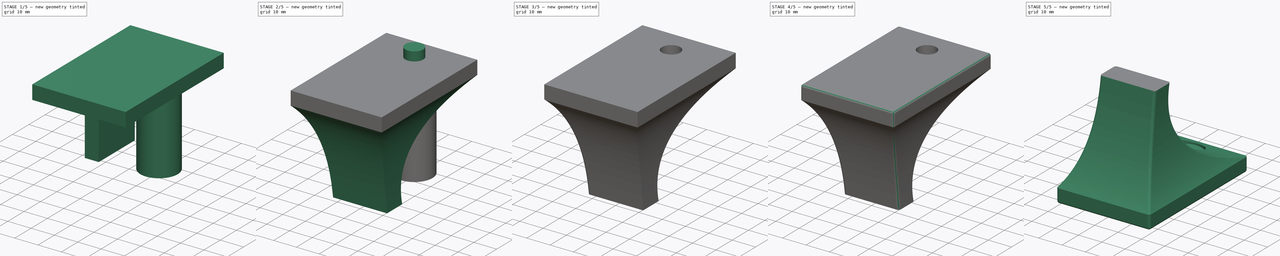
[diagram: build sequence overview — one tinted view per stage of 5, left to right]
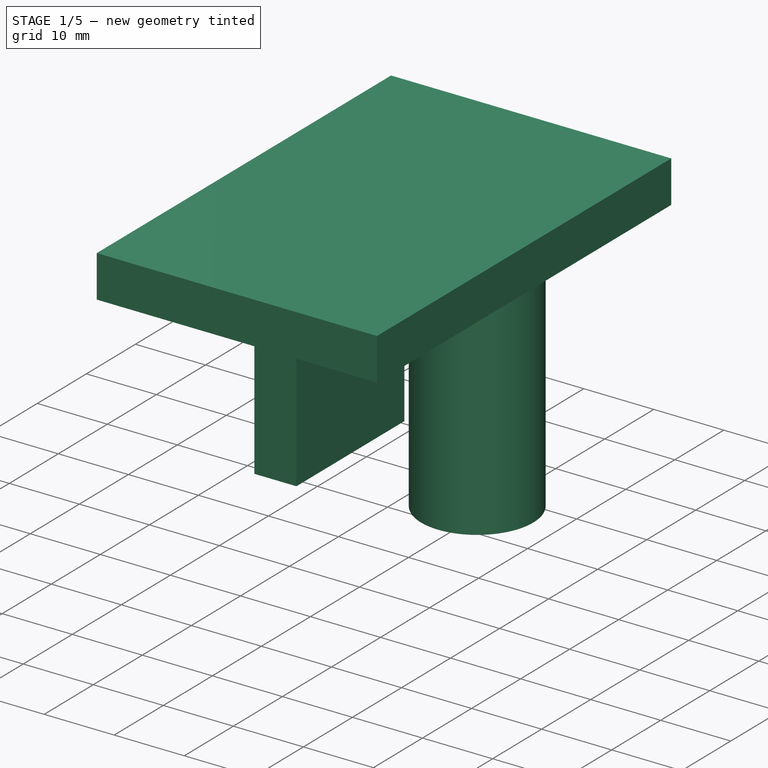
[diagram: stage 1 of 5 — iso view after this stage's code; geometry added in this stage tinted green]
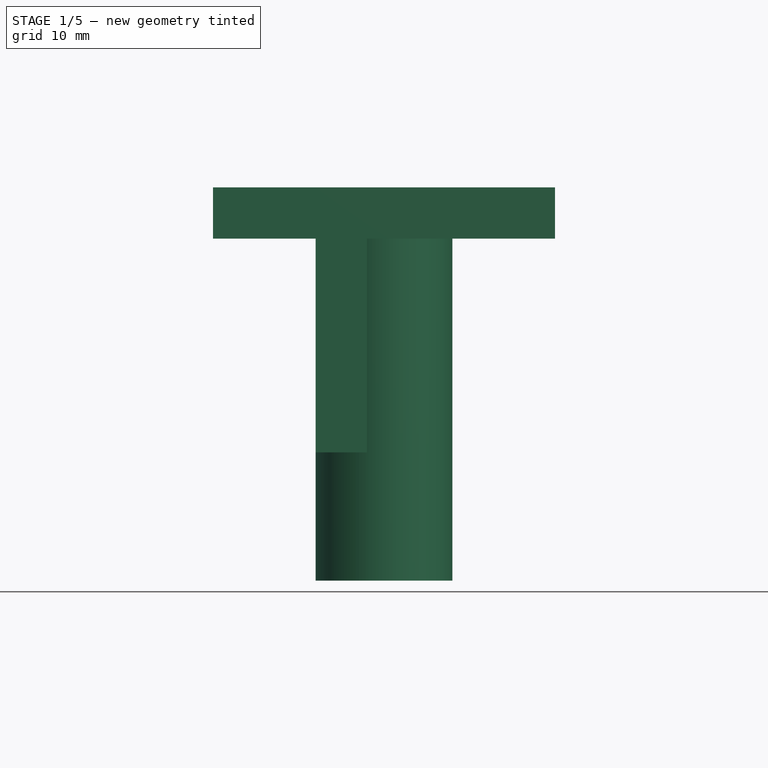
[diagram: stage 1 of 5 — front view after this stage's code; geometry added in this stage tinted green]
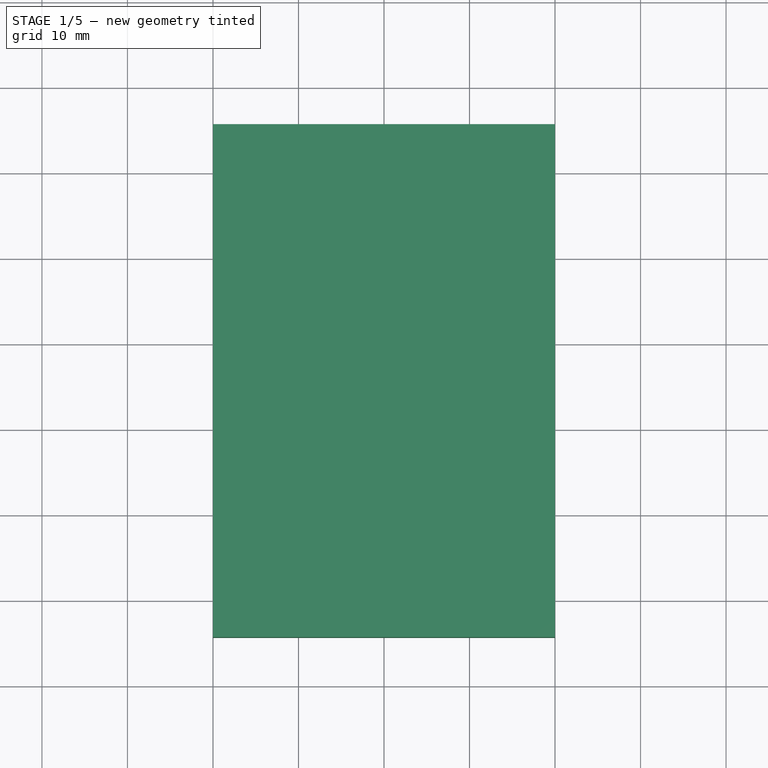
[diagram: stage 1 of 5 — top view after this stage's code; geometry added in this stage tinted green]
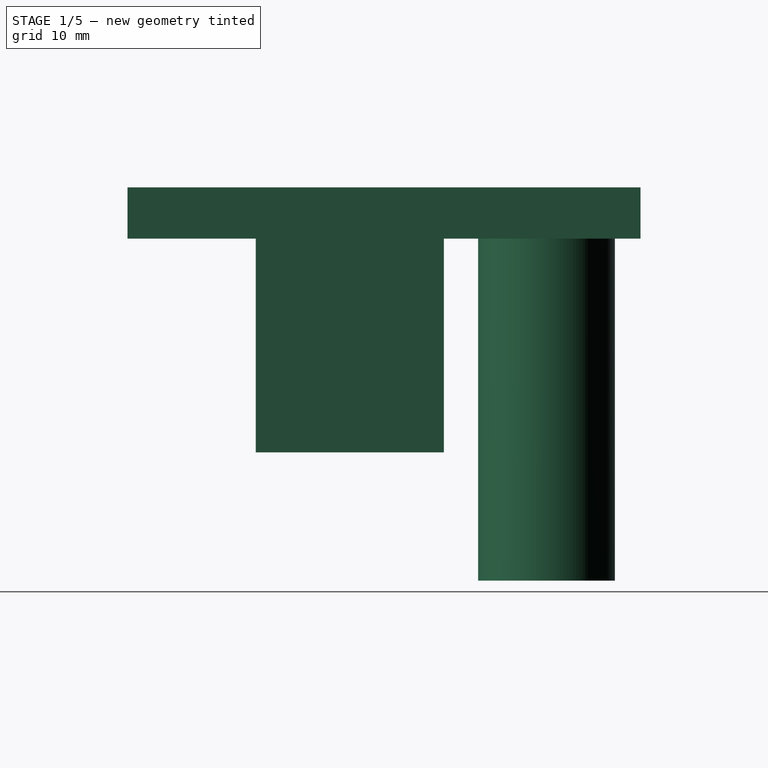
[diagram: stage 1 of 5 — right view after this stage's code; geometry added in this stage tinted green]
FCSTD DOCUMENT  (FreeCAD 0.15R4671 (Git))
Label: 车载
License: All rights reserved
LicenseURL: http://en.wikipedia.org/wiki/All_rights_reserved
objects: Part::Cut×4, Part::Fillet×4, Sketcher::SketchObject×3, Part::Cylinder×2, Part::Box×2, Part::Loft×1, PartDesign::Pad×1, Part::Fuse×1
note: 19 computed .brp shape members not serialized (recipe doc carries the construction recipe); baked Part::Feature solids carry a one-line shape summary decoded from their .brp

FEATURE [PartDesign::Pad] Pad
  Length = 6
  Length2 = 100
  Placement = pos=(0,0,40) rot=(0,0,1;0rad)
  Sketch = -> Sketch002
  Type = 0
FEATURE [Part::Cylinder] Cylinder001
  Angle = 360
  Height = 40
  Placement = pos=(0,34,0) rot=(0,0,1;0rad)
  Radius = 8
FEATURE [Part::Box] Box  label="Cube"
  Height = 25
  Length = 6
  Placement = pos=(-8,0,15) rot=(0,0,1;0rad)
  Width = 22
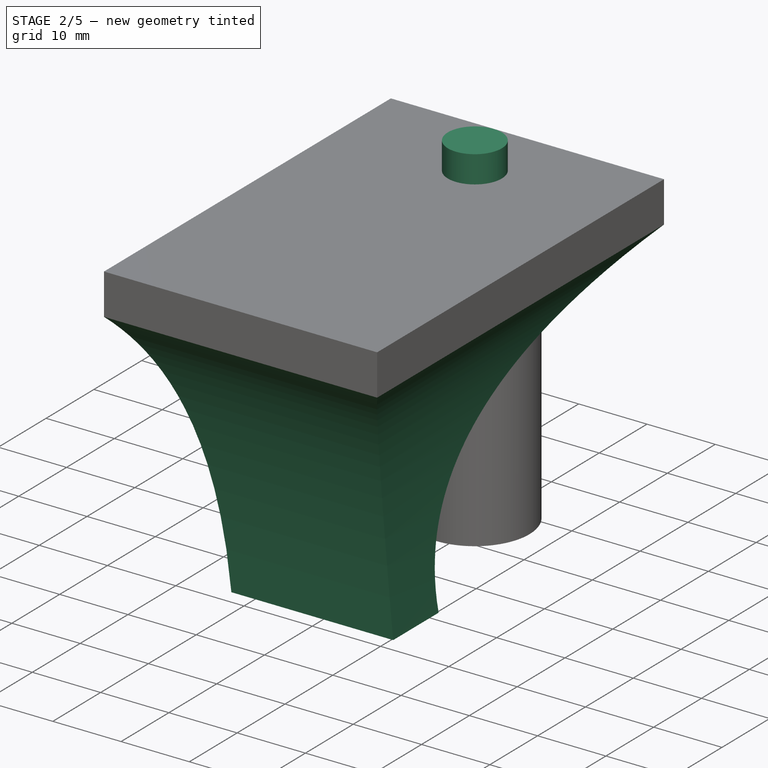
[diagram: stage 2 of 5 — iso view after this stage's code; geometry added in this stage tinted green]
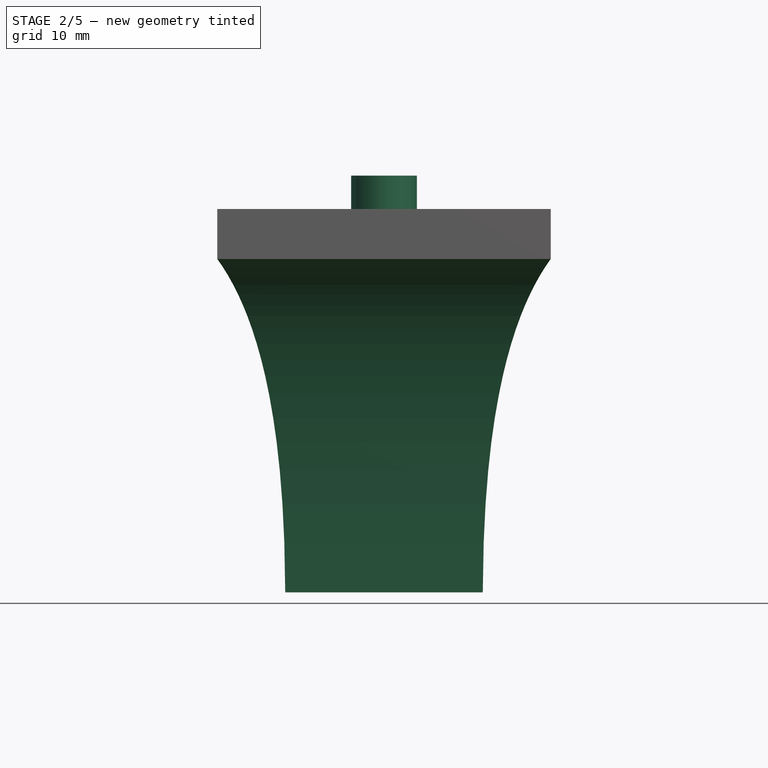
[diagram: stage 2 of 5 — front view after this stage's code; geometry added in this stage tinted green]
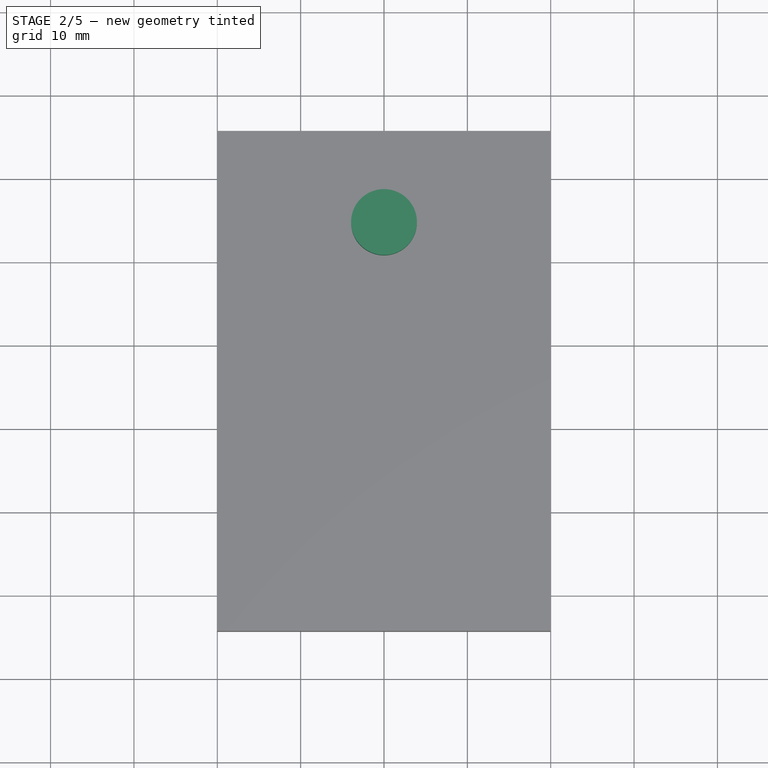
[diagram: stage 2 of 5 — top view after this stage's code; geometry added in this stage tinted green]
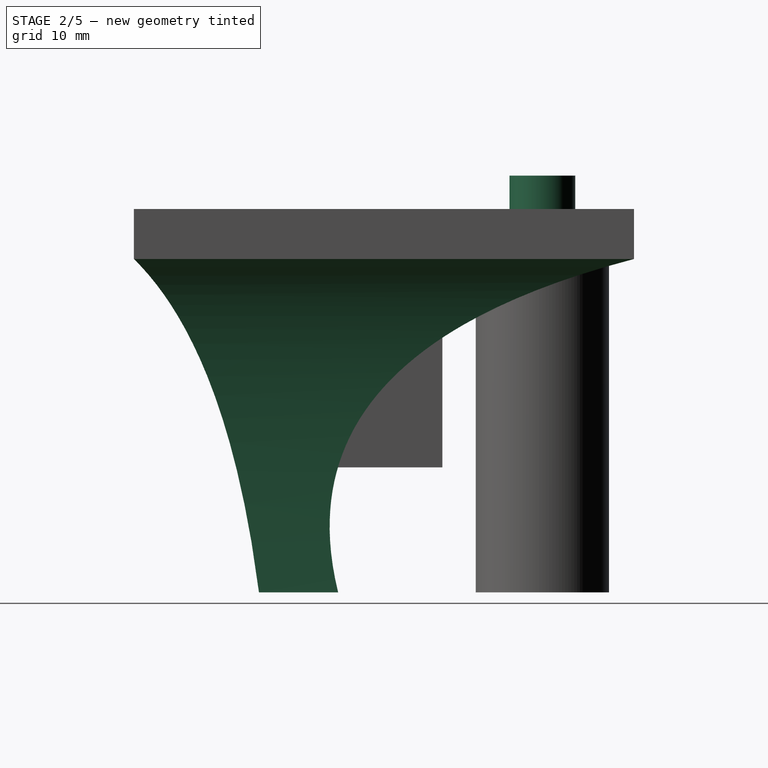
[diagram: stage 2 of 5 — right view after this stage's code; geometry added in this stage tinted green]
FEATURE [Sketcher::SketchObject] Sketch
  sketch-geometry (4):
    g0: LineSegment StartX=-11.85 StartY=9.5 StartZ=0 EndX=11.85 EndY=9.5 EndZ=0
    g1: LineSegment StartX=11.85 StartY=9.5 StartZ=0 EndX=11.85 EndY=0 EndZ=0
    g2: LineSegment StartX=11.85 StartY=0 StartZ=0 EndX=-11.85 EndY=0 EndZ=0
    g3: LineSegment StartX=-11.85 StartY=0 StartZ=0 EndX=-11.85 EndY=9.5 EndZ=0
  constraints (12):
    c: Coincident(g0,g1)
    c: Coincident(g1,g2)
    c: Coincident(g2,g3)
    c: Coincident(g3,g0)
    c: Horizontal(g0)
    c: Horizontal(g2)
    c: Vertical(g1)
    c: Vertical(g3)
    c: Symmetric(g0,g0,g-2)
    c: DistanceX(g2) = -23.7
    c: DistanceY(g1) = -9.5
    c: PointOnObject(g1,g-1)
FEATURE [Sketcher::SketchObject] Sketch001
  Placement = pos=(0,0,15.1) rot=(0,0,1;0rad)
  sketch-geometry (4):
    g0: LineSegment StartX=-12.55 StartY=9.5 StartZ=0 EndX=12.55 EndY=9.5 EndZ=0
    g1: LineSegment StartX=12.55 StartY=9.5 StartZ=0 EndX=12.55 EndY=-2.76 EndZ=0
    g2: LineSegment StartX=12.55 StartY=-2.76 StartZ=0 EndX=-12.55 EndY=-2.76 EndZ=0
    g3: LineSegment StartX=-12.55 StartY=-2.76 StartZ=0 EndX=-12.55 EndY=9.5 EndZ=0
  constraints (12):
    c: Coincident(g0,g1)
    c: Coincident(g1,g2)
    c: Coincident(g2,g3)
    c: Coincident(g3,g0)
    c: Horizontal(g0)
    c: Horizontal(g2)
    c: Vertical(g1)
    c: Vertical(g3)
    c: Symmetric(g0,g0,g-2)
    c: DistanceX(g0) = 25.1
    c: DistanceY(g-1,g0) = 9.5
    c: DistanceY(g3) = 12.26
FEATURE [Sketcher::SketchObject] Sketch002
  Placement = pos=(0,0,40) rot=(0,0,1;0rad)
  sketch-geometry (4):
    g0: LineSegment StartX=-20 StartY=45 StartZ=0 EndX=20 EndY=45 EndZ=0
    g1: LineSegment StartX=20 StartY=45 StartZ=0 EndX=20 EndY=-15 EndZ=0
    g2: LineSegment StartX=20 StartY=-15 StartZ=0 EndX=-20 EndY=-15 EndZ=0
    g3: LineSegment StartX=-20 StartY=-15 StartZ=0 EndX=-20 EndY=45 EndZ=0
  constraints (12):
    c: Coincident(g0,g1)
    c: Coincident(g1,g2)
    c: Coincident(g2,g3)
    c: Coincident(g3,g0)
    c: Horizontal(g0)
    c: Horizontal(g2)
    c: Vertical(g1)
    c: Vertical(g3)
    c: Symmetric(g0,g0,g-2)
    c: DistanceX(g0) = 40
    c: DistanceY(g-1,g0) = 45
    c: DistanceY(g3) = 60
FEATURE [Part::Loft] Loft
  Closed = false
  Ruled = false
  Sections = -> [Sketch,Sketch001,Sketch002]
  Solid = true
FEATURE [Part::Cylinder] Cylinder
  Angle = 360
  Height = 50
  Placement = pos=(0,34,0) rot=(0,0,1;0rad)
  Radius = 3.95
FEATURE [Part::Fuse] Fusion
  Base = -> Loft
  Tool = -> Pad
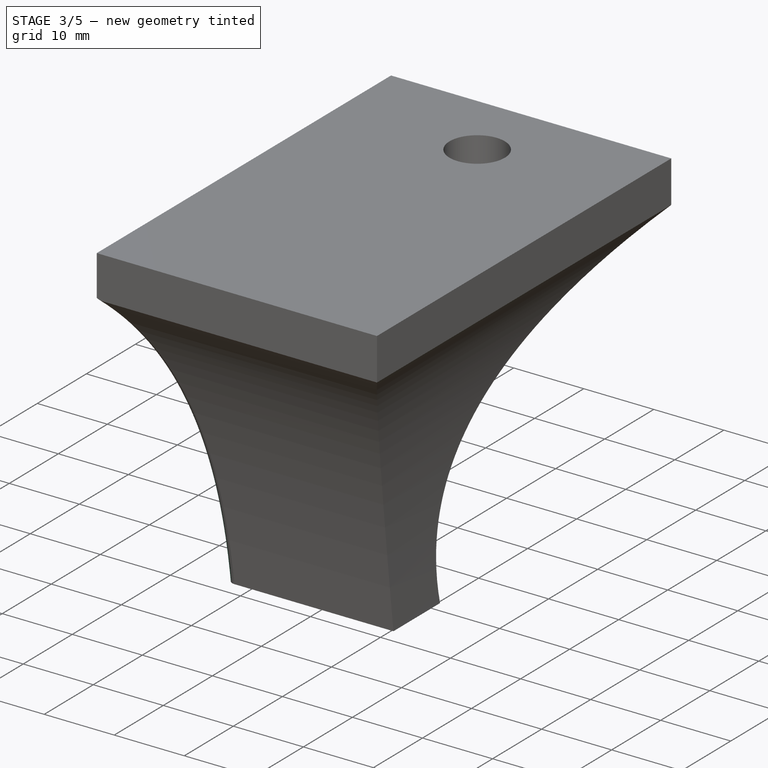
[diagram: stage 3 of 5 — iso view after this stage's code; geometry added in this stage tinted green]
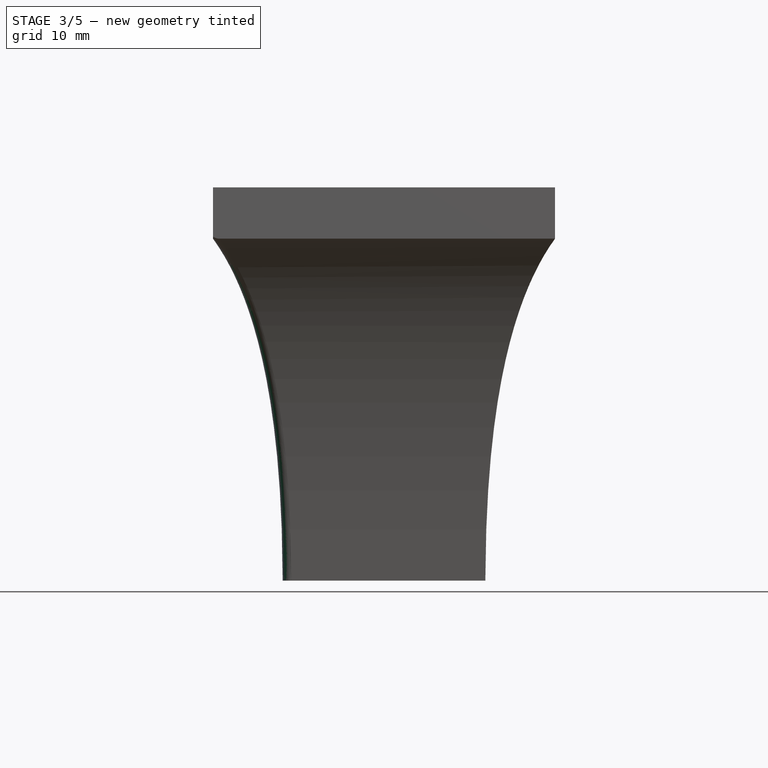
[diagram: stage 3 of 5 — front view after this stage's code; geometry added in this stage tinted green]
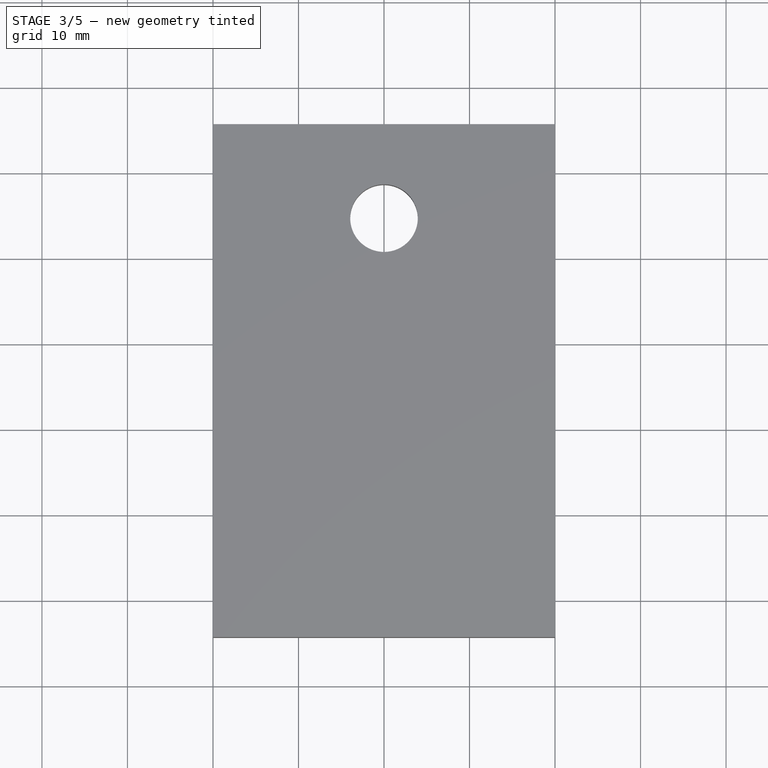
[diagram: stage 3 of 5 — top view after this stage's code; geometry added in this stage tinted green]
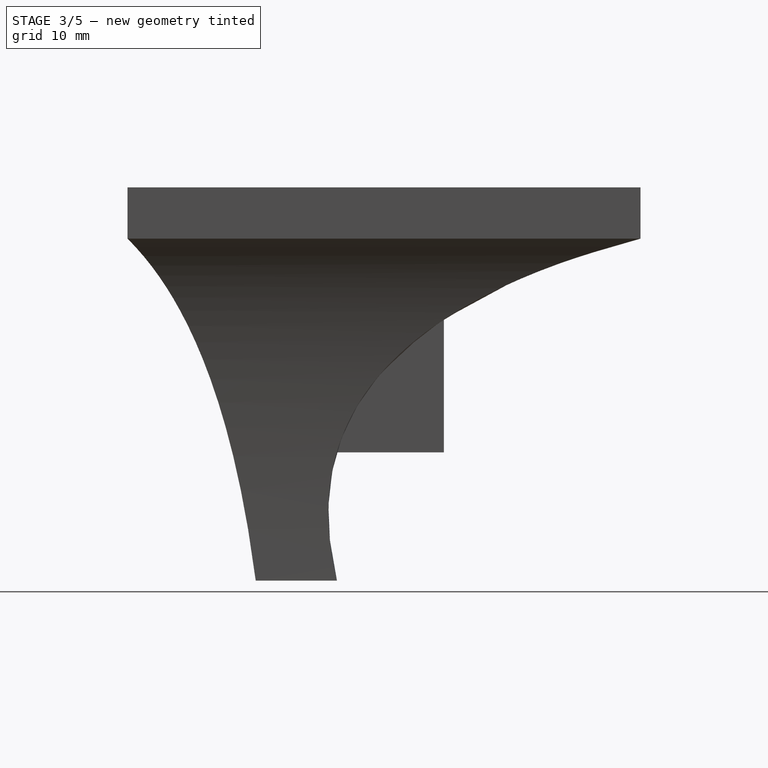
[diagram: stage 3 of 5 — right view after this stage's code; geometry added in this stage tinted green]
FEATURE [Part::Cut] Cut
  Base = -> Fusion
  Tool = -> Cylinder
FEATURE [Part::Cut] Cut001
  Base = -> Cut
  Tool = -> Cylinder001
FEATURE [Part::Fillet] Fillet
  Base = -> Cut001
  Edges = 1 edges r=1: [Edge12]
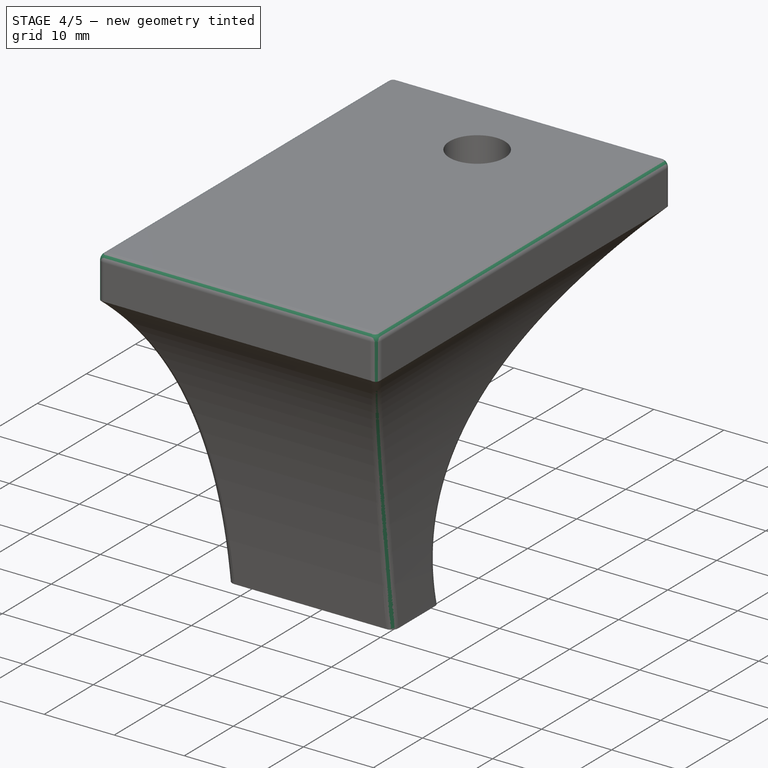
[diagram: stage 4 of 5 — iso view after this stage's code; geometry added in this stage tinted green]
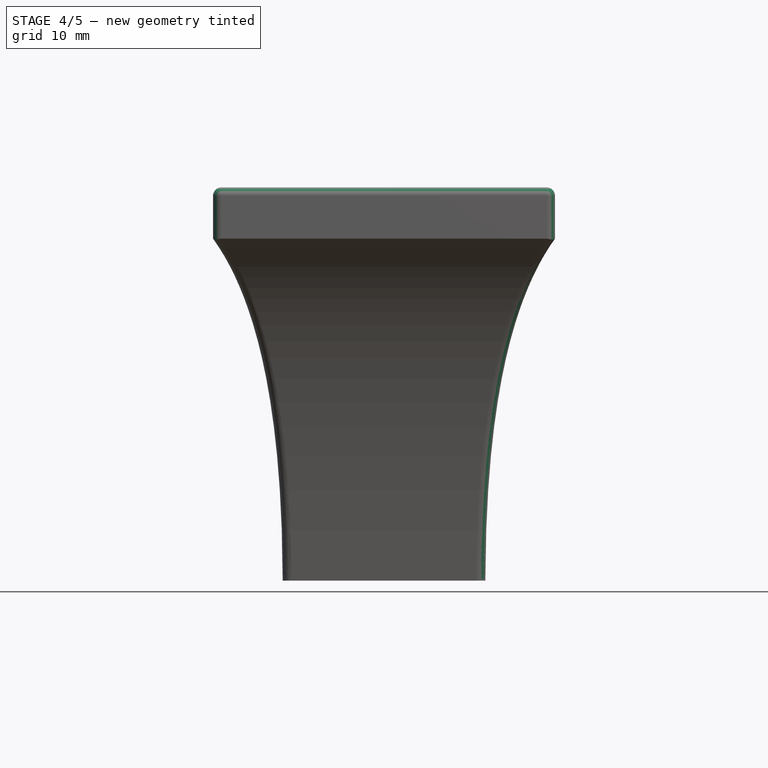
[diagram: stage 4 of 5 — front view after this stage's code; geometry added in this stage tinted green]
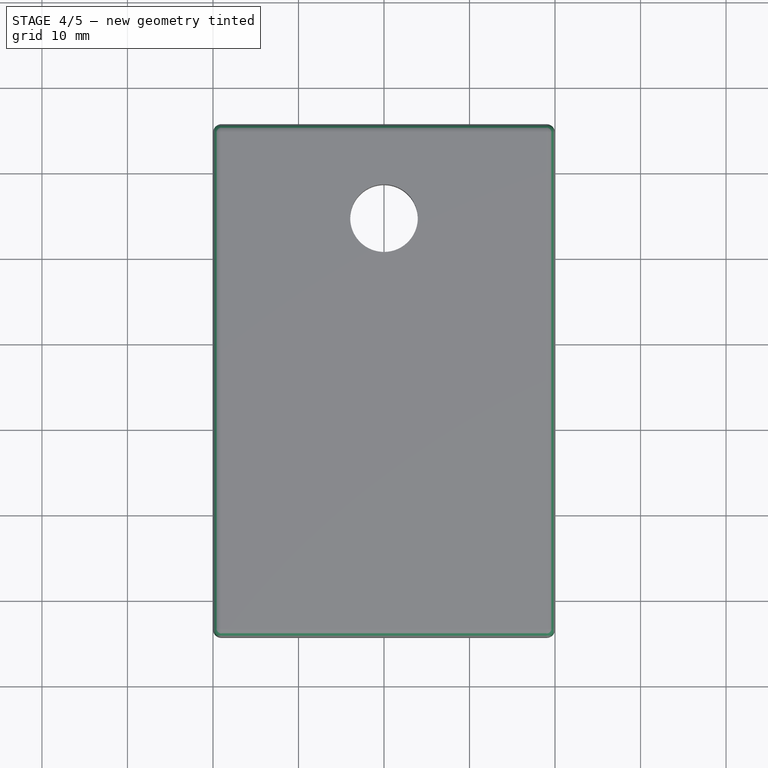
[diagram: stage 4 of 5 — top view after this stage's code; geometry added in this stage tinted green]
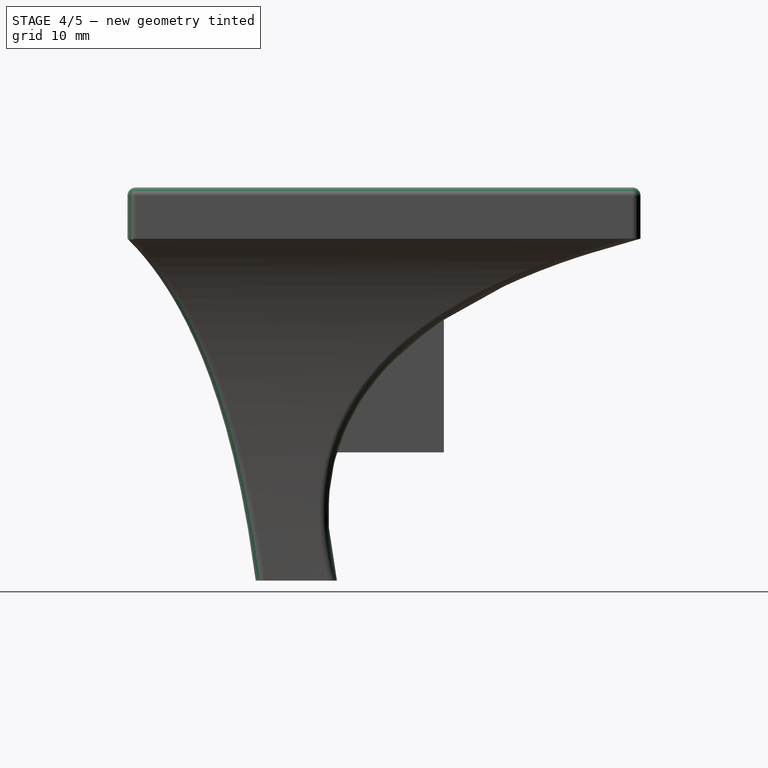
[diagram: stage 4 of 5 — right view after this stage's code; geometry added in this stage tinted green]
FEATURE [Part::Fillet] Fillet001
  Base = -> Fillet
  Edges = 1 edges r=1: [Edge7]
FEATURE [Part::Fillet] Fillet002
  Base = -> Fillet001
  Edges = 2 edges r=1: [Edge16,Edge18]
FEATURE [Part::Fillet] Fillet003
  Base = -> Fillet002
  Edges = 8 edges r=1: [Edge31,Edge32,Edge33,Edge34,Edge35,Edge36,Edge37,Edge40]
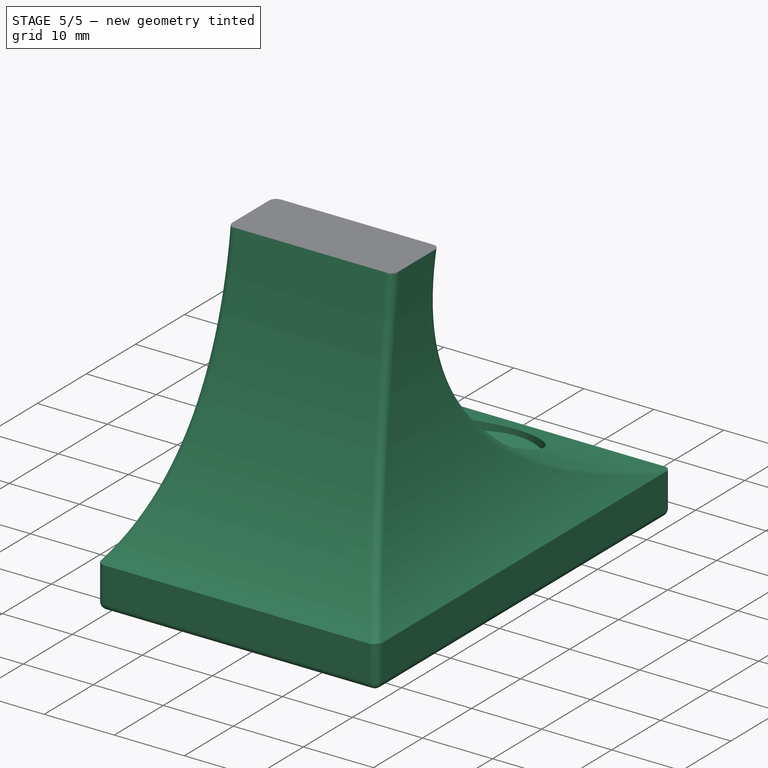
[diagram: stage 5 of 5 — iso view after this stage's code; geometry added in this stage tinted green]
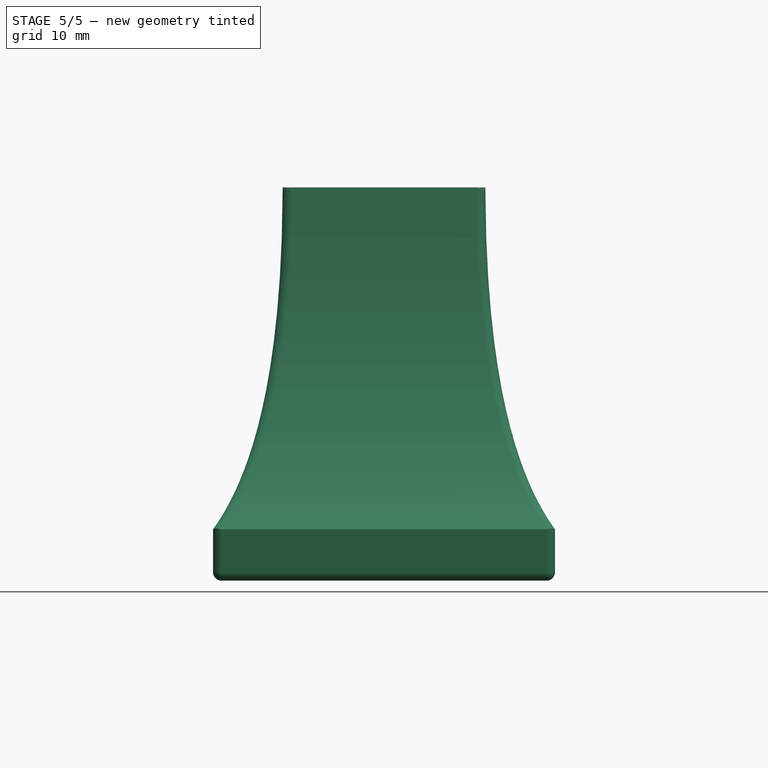
[diagram: stage 5 of 5 — front view after this stage's code; geometry added in this stage tinted green]
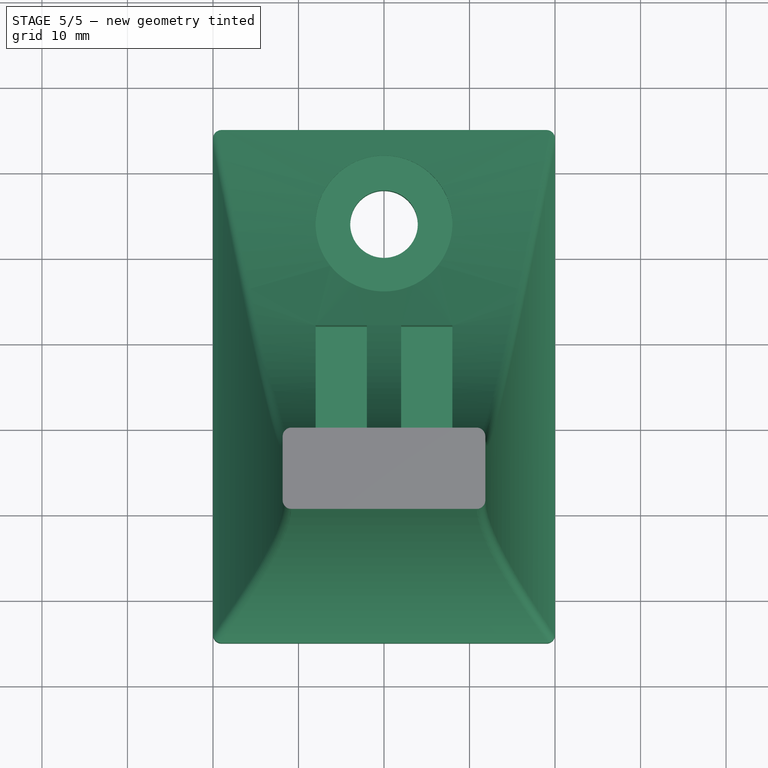
[diagram: stage 5 of 5 — top view after this stage's code; geometry added in this stage tinted green]
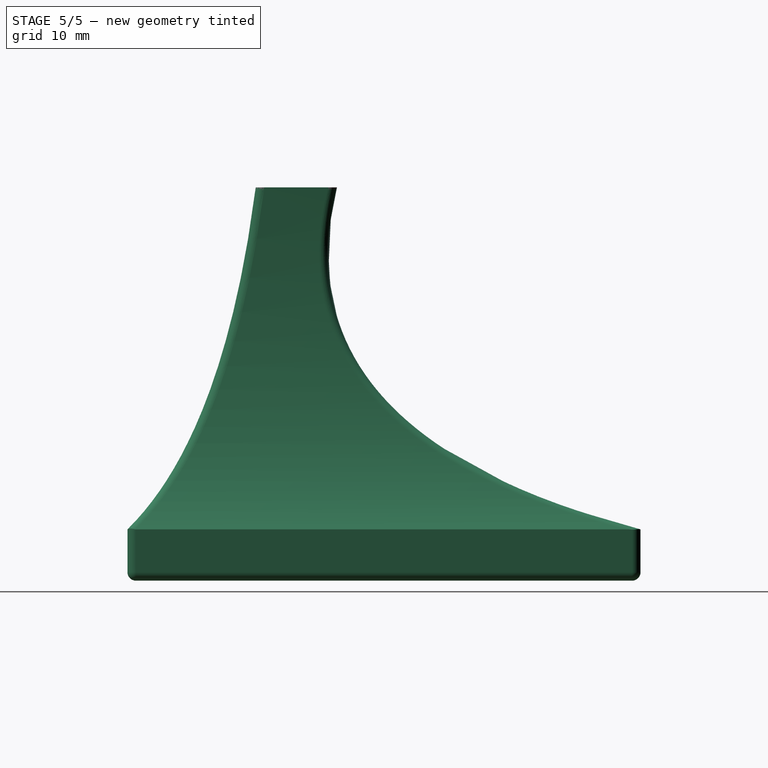
[diagram: stage 5 of 5 — right view after this stage's code; geometry added in this stage tinted green]
FEATURE [Part::Box] Box001  label="Cube001"
  Height = 25
  Length = 6
  Placement = pos=(2,0,15) rot=(0,0,1;0rad)
  Width = 22
FEATURE [Part::Cut] Cut002
  Base = -> Fillet003
  Tool = -> Box
FEATURE [Part::Cut] Cut003
  Base = -> Cut002
  Placement = pos=(0,0,0) rot=(0,1,0;3.14159rad)
  Tool = -> Box001
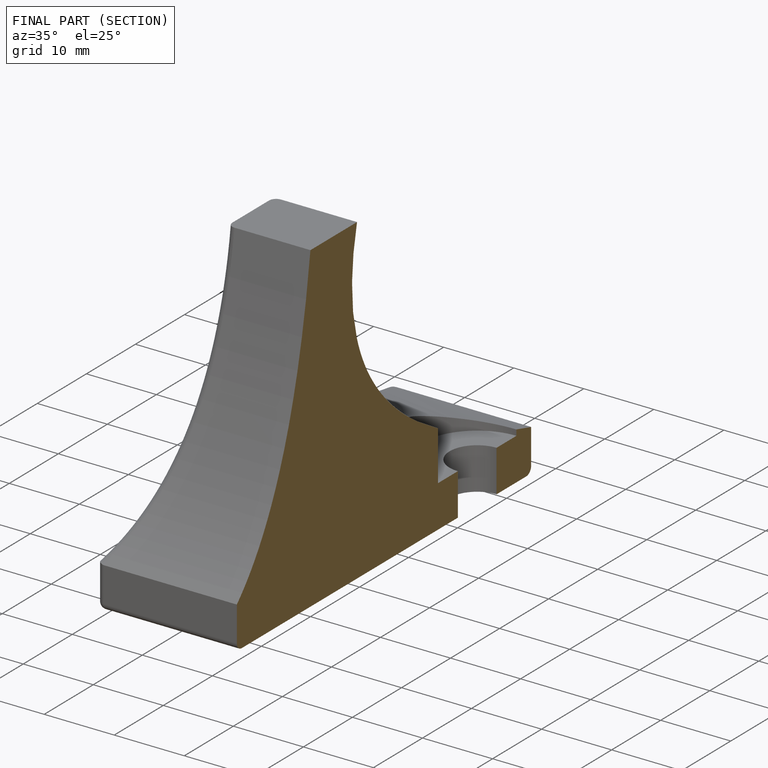
[diagram: finished part — half-section view (interior)]
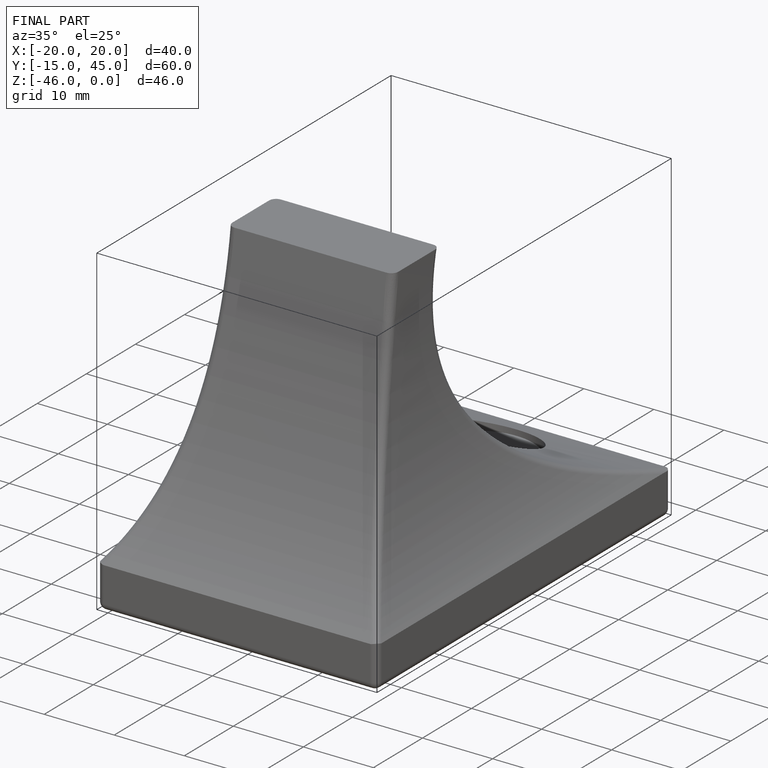
[diagram: finished part — iso view with bounding-box wireframe]
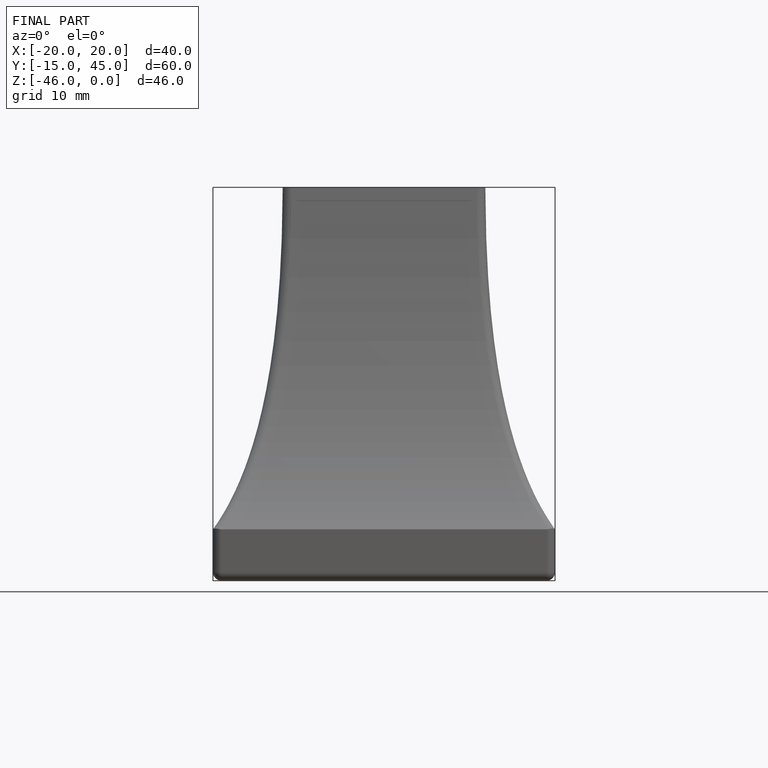
[diagram: finished part — front view with bounding-box wireframe]
